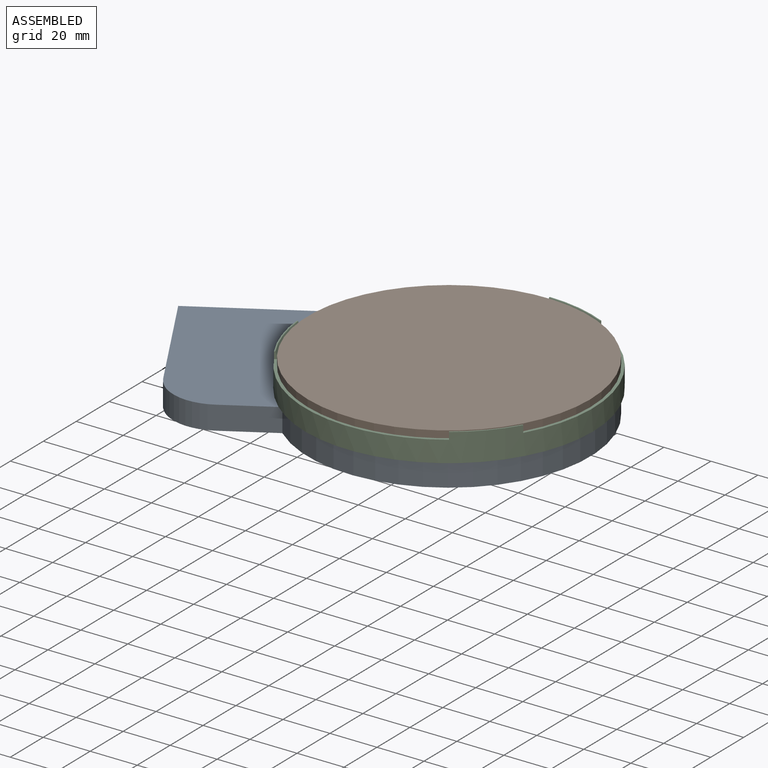
[diagram: assembled view]
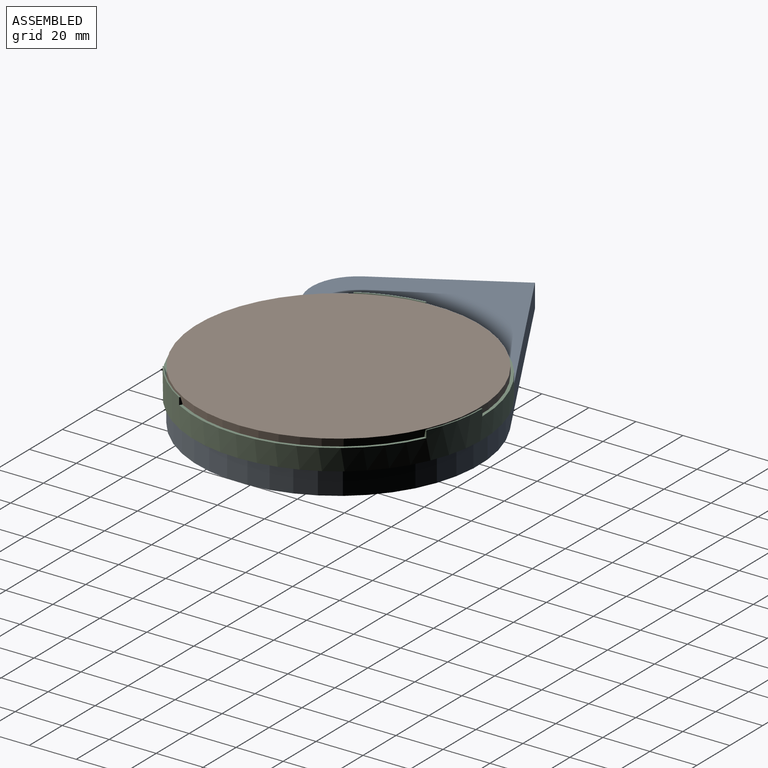
[diagram: assembled view, second angle]
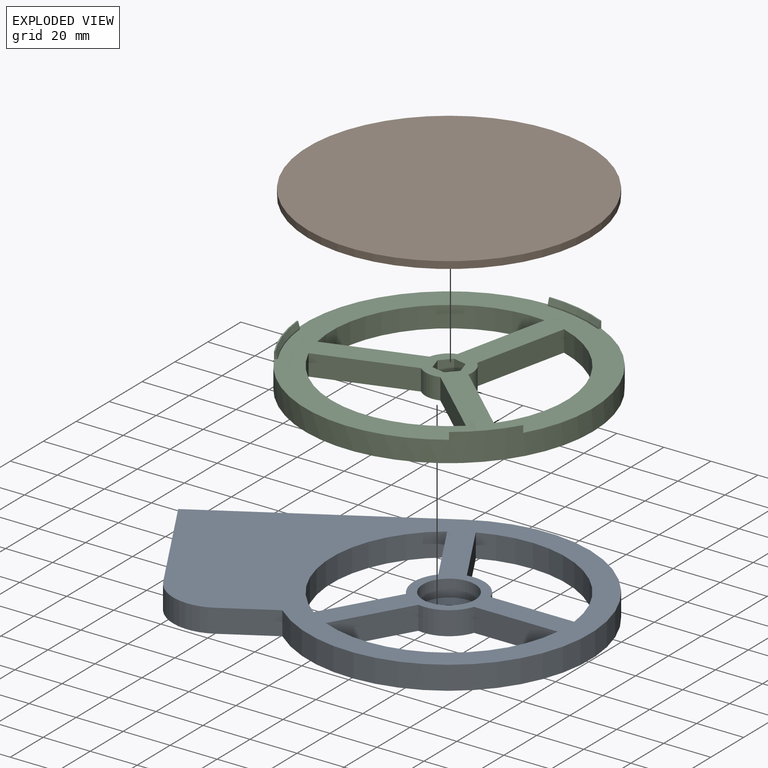
[diagram: exploded view]
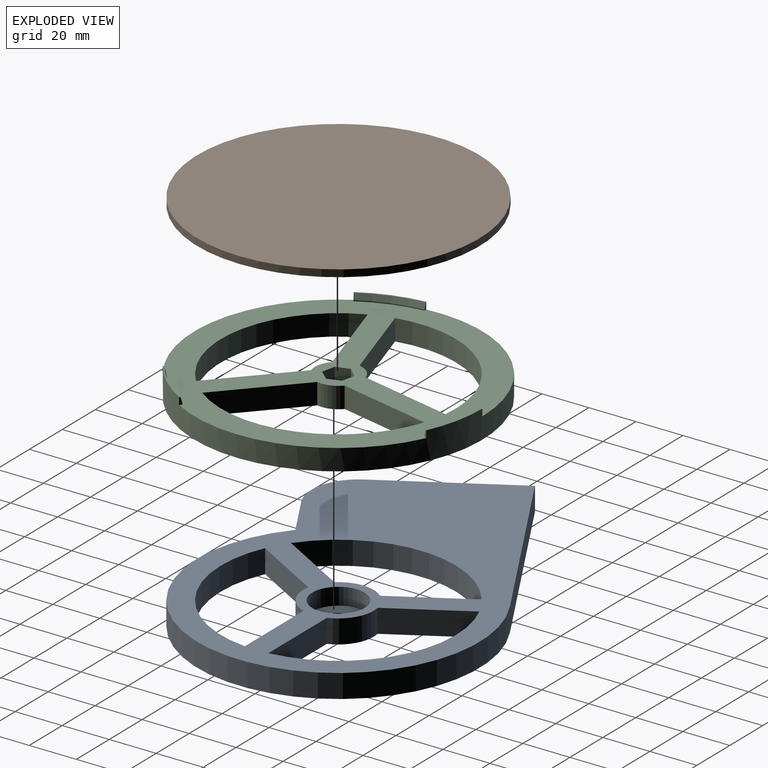
[diagram: exploded view, second angle]
ASSEMBLY  parts=3 mates=4
PART A: 22 faces, bbox 176.6x120x10 mm
  f0: cylinder r=5mm len=10mm, axis (0,0,-1), area 86.4mm2, adj f19,f21
  f1: cylinder r=50mm len=70.29mm, axis (0,0,-1), area 947mm2, adj f2,f14,f18,f19
  f2: plane 35.61x10mm, normal (0,1,0), area 356.1mm2, adj f1,f3,f18,f19
  f3: cylinder r=15mm len=16.88mm, axis (0,0,-1), area 212.2mm2, adj f2,f14,f18,f19
  f4: cylinder r=50mm len=81.17mm, axis (0,0,-1), area 947mm2, adj f5,f15,f18,f19
  f5: plane 30.84x17.8mm, normal (-0.87,-0.5,0), area 356.1mm2, adj f4,f6,f18,f19
  f6: cylinder r=15mm len=19.5mm, axis (0,0,-1), area 212.2mm2, adj f5,f15,f18,f19
  f7: cylinder r=50mm len=70.29mm, axis (0,0,-1), area 947mm2, adj f8,f16,f18,f19
  f8: plane 30.84x17.8mm, normal (0.87,-0.5,0), area 356.1mm2, adj f7,f9,f18,f19
  f9: cylinder r=15mm len=16.88mm, axis (0,0,-1), area 212.2mm2, adj f8,f16,f18,f19
  f10: cylinder r=20mm len=27.32mm, axis (0,0,-1), area 314.2mm2, adj f11,f17,f18,f19
  f11: plane 20.29x11.72mm, normal (0.5,-0.87,0), area 234.3mm2, adj f10,f12,f18,f19
  f12: cylinder r=60mm len=120mm, axis (0,0,-1), area 2623.5mm2, adj f11,f13,f18,f19
  f13: plane 86.6x50mm, normal (-0.5,0.87,0), area 1000mm2, adj f12,f17,f18,f19
  f14: plane 30.84x17.8mm, normal (0.87,0.5,0), area 356.1mm2, adj f1,f3,f18,f19
  f15: plane 30.84x17.8mm, normal (-0.87,0.5,0), area 356.1mm2, adj f4,f6,f18,f19
  f16: plane 35.61x10mm, normal (0,-1,0), area 356.1mm2, adj f7,f9,f18,f19
  f17: plane 51.96x30mm, normal (-0.87,-0.5,0), area 600mm2, adj f10,f13,f18,f19
  f18: plane 176.6x120mm, normal (0,0,1), area 8739.1mm2, adj f1,f2,f3,f4,f5,f6,f7,f8
  f19: plane 176.6x120mm, normal (0,0,-1), area 9049.4mm2, adj f0,f1,f2,f3,f4,f5,f6,f7
  f20: cylinder r=11.12mm len=22.25mm, axis (0,0,1), area 506.8mm2, adj f18,f21
  f21: plane 22.25x22.25mm, normal (0,0,1), area 310.3mm2, adj f0,f20
PART B: 3 faces, bbox 120x120x3 mm
  f0: cylinder r=60mm len=120mm, axis (0,0,-1), area 1131mm2, adj f1,f2
  f1: plane 120x120mm, normal (0,0,1), area 11309.7mm2, adj f0
  f2: plane 120x120mm, normal (0,0,-1), area 11309.7mm2, adj f0
PART C: 38 faces, bbox 122.5x122.5x12 mm
  f0: cylinder r=60mm len=25.36mm, axis (0,0,-1), area 13.1mm2, adj f4,f7,f8,f37
  f1: cylinder r=60mm len=24.77mm, axis (0,0,-1), area 13.1mm2, adj f4,f10,f11,f36
  f2: cylinder r=60mm len=19.15mm, axis (0,0,-1), area 13.1mm2, adj f4,f13,f14,f35
  f3: cylinder r=4mm len=8mm, axis (0,0,1), area 75.4mm2, adj f6,f28
  f4: plane 122.5x122.5mm, normal (0,0,1), area 5266.4mm2, adj f0,f1,f2,f5,f7,f8,f10,f11
  f5: cylinder r=61.25mm len=122.5mm, axis (0,0,-1), area 3704.1mm2, adj f4,f6,f7,f8,f9,f10,f11,f12
  f6: plane 122.5x122.5mm, normal (0,0,-1), area 5406.3mm2, adj f3,f5,f16,f17,f18,f19,f20,f21
  f7: plane 3x1.13mm, normal (0.91,-0.42,0), area 2.8mm2, adj f0,f4,f5,f9,f37
  f8: plane 3x1.25mm, normal (-1,0,0), area 2.8mm2, adj f0,f4,f5,f9,f37
  f9: plane 25.89x6.19mm, normal (0,0,1), area 13.3mm2, adj f5,f7,f8,f37
  f10: plane 3x1.25mm, normal (-0.09,1,0), area 2.8mm2, adj f1,f4,f5,f12,f36
  f11: plane 3x1.08mm, normal (0.5,-0.87,0), area 2.8mm2, adj f1,f4,f5,f12,f36
  f12: plane 25.33x8.41mm, normal (0,0,1), area 13.3mm2, adj f5,f10,f11,f36
  f13: plane 3x1.08mm, normal (0.5,0.87,0), area 2.8mm2, adj f2,f4,f5,f15,f35
  f14: plane 3x1.02mm, normal (-0.82,-0.57,0), area 2.8mm2, adj f2,f4,f5,f15,f35
  f15: plane 19.8x18.2mm, normal (0,0,1), area 13.3mm2, adj f5,f13,f14,f35
  f16: cylinder r=50mm len=77.41mm, axis (0,0,1), area 852.3mm2, adj f4,f6,f17,f18
  f17: plane 30.29x27.76mm, normal (0.68,0.74,0), area 369.8mm2, adj f4,f6,f16,f19
  f18: plane 40.12x9mm, normal (0.98,-0.22,0), area 369.8mm2, adj f4,f6,f16,f19
  f19: cylinder r=10mm len=9.54mm, axis (0,0,1), area 94.2mm2, adj f4,f6,f17,f18
  f20: plane 40.12x9mm, normal (-0.98,0.22,0), area 369.8mm2, adj f4,f6,f21,f22
  f21: cylinder r=50mm len=60.19mm, axis (0,0,1), area 852.3mm2, adj f4,f6,f20,f23
  f22: cylinder r=10mm len=9mm, axis (0,0,1), area 94.2mm2, adj f4,f6,f20,f23
  f23: plane 39.19x12.36mm, normal (-0.3,0.95,0), area 369.8mm2, adj f4,f6,f21,f22
  f24: cylinder r=50mm len=79.24mm, axis (0,0,1), area 852.3mm2, adj f4,f6,f25,f26
  f25: plane 39.19x12.36mm, normal (0.3,-0.95,0), area 369.8mm2, adj f4,f6,f24,f27
  f26: plane 30.29x27.76mm, normal (-0.68,-0.74,0), area 369.8mm2, adj f4,f6,f24,f27
  f27: cylinder r=10mm len=9.76mm, axis (0,0,1), area 94.2mm2, adj f4,f6,f25,f26
  f28: plane 11.56x11.29mm, normal (0,0,1), area 40.7mm2, adj f3,f29,f30,f31,f32,f33,f34
  f29: plane 6x4.36mm, normal (-0.74,0.68,0), area 35.5mm2, adj f4,f28,f30,f34
  f30: plane 6x5.64mm, normal (-0.95,-0.3,0), area 35.5mm2, adj f4,f28,f29,f31
  f31: plane 6x5.78mm, normal (-0.22,-0.98,0), area 35.5mm2, adj f4,f28,f30,f32
  f32: plane 6x4.36mm, normal (0.74,-0.68,0), area 35.5mm2, adj f4,f28,f31,f33
  f33: plane 6x5.64mm, normal (0.95,0.3,0), area 35.5mm2, adj f4,f28,f32,f34
  f34: plane 6x5.78mm, normal (0.22,0.98,0), area 35.5mm2, adj f4,f28,f29,f33
  f35: cone r=60.75mm half-angle=16.7deg, axis (0,0,1), area 68.8mm2, adj f2,f13,f14,f15
  f36: cone r=60.75mm half-angle=16.7deg, axis (0,0,1), area 68.8mm2, adj f1,f10,f11,f12
  f37: cone r=60.75mm half-angle=16.7deg, axis (0,0,1), area 68.8mm2, adj f0,f7,f8,f9
PLACE A t=(-36.52,-184.05,-106.18)mm
PLACE B t=(138.99,-322.45,-87.18)mm
PLACE C t=(-125.3,-268.75,-96.18)mm
MATE planar C.f0 <-> A.f18  axis (0,0,-1) through (-36.52,-184.05,-96.18)mm
MATE planar B.f0 <-> C.f0  axis (0,0,-1) through (-36.52,-184.05,-87.18)mm
MATE cylindrical B.f0 <-> C.f0  axis (0,0,-1) through (-36.52,-184.05,-85.68)mm
MATE cylindrical C.f0 <-> A.f12  axis (0,0,-1) through (-36.52,-184.05,-90.18)mm
